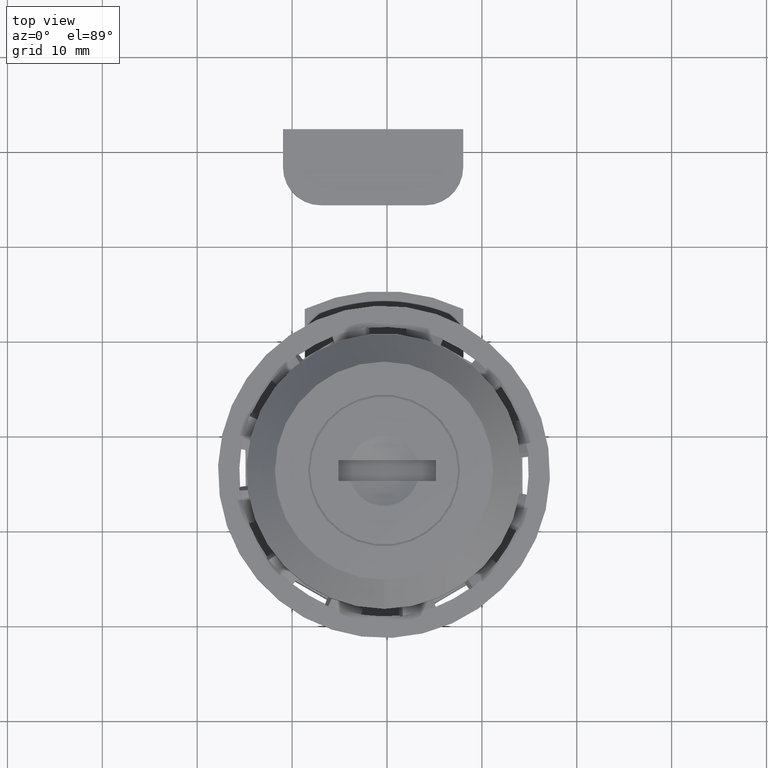
[diagram: clean part render]
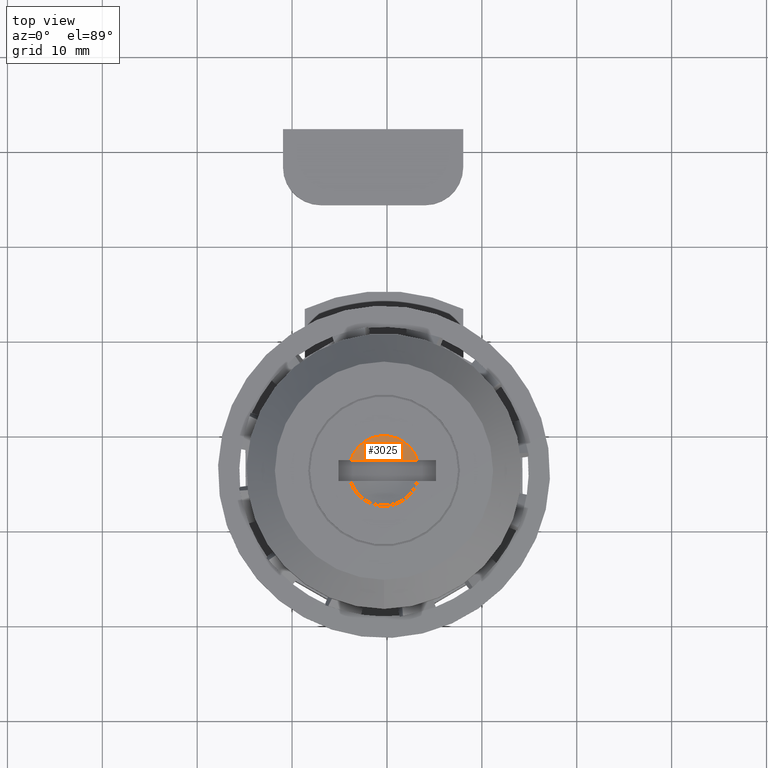
[diagram: same view with one face highlighted and labeled with its STEP entity id]
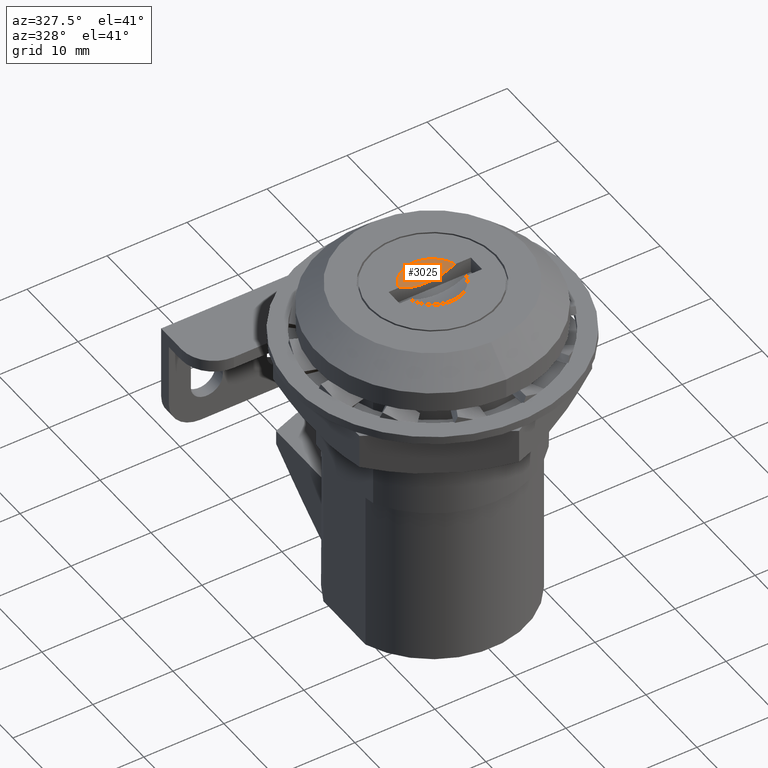
[diagram: same view with one face highlighted and labeled with its STEP entity id]
A machine part, top view. The second image highlights one B-rep face of the part: STEP entity #3025.
A second angle (auxiliary view) of the same face is appended — the face is thin or edge-on in the first view.
In plain terms, the highlighted spherical surface has radius 7.345 mm.
Its self-contained STEP definition (entity closure, byte-faithful):
#167=SPHERICAL_SURFACE('',#3213,7.345);
#267=FACE_OUTER_BOUND('',#439,.T.);
#439=EDGE_LOOP('',(#2104,#2105));
#624=CIRCLE('',#3214,7.26216393370461);
#625=CIRCLE('',#3215,3.7);
#1295=VERTEX_POINT('',#4197);
#1296=VERTEX_POINT('',#4198);
#1615=EDGE_CURVE('',#1295,#1296,#624,.T.);
#1616=EDGE_CURVE('',#1296,#1295,#625,.T.);
#2104=ORIENTED_EDGE('',*,*,#1615,.F.);
#2105=ORIENTED_EDGE('',*,*,#1616,.F.);
#3025=ADVANCED_FACE('',(#267),#167,.F.);
#3213=AXIS2_PLACEMENT_3D('',#4196,#3477,#3478);
#3214=AXIS2_PLACEMENT_3D('',#4199,#3479,#3480);
#3215=AXIS2_PLACEMENT_3D('',#4200,#3481,#3482);
#3477=DIRECTION('center_axis',(1.22464679914735E-16,0.,1.));
#3478=DIRECTION('ref_axis',(1.,0.,-1.20922861769929E-16));
#3479=DIRECTION('center_axis',(-1.34735803959364E-17,1.,1.38777878078145E-16));
#3480=DIRECTION('ref_axis',(0.,-1.38777878078145E-16,1.));
#3481=DIRECTION('center_axis',(0.,1.17553026136781E-16,-1.));
#3482=DIRECTION('ref_axis',(0.,1.,1.17553026136781E-16));
#4196=CARTESIAN_POINT('Origin',(0.,-8.32667268468867E-16,6.345));
#4197=CARTESIAN_POINT('',(3.53270434653114,1.1,-1.42863119240347E-15));
#4198=CARTESIAN_POINT('',(-3.53270434653114,1.1,-1.42863119240347E-15));
#4199=CARTESIAN_POINT('Origin',(-1.482093843553E-17,1.1,6.345));
#4200=CARTESIAN_POINT('Origin',(0.,-8.67933176309899E-17,-1.11022302462516E-15));